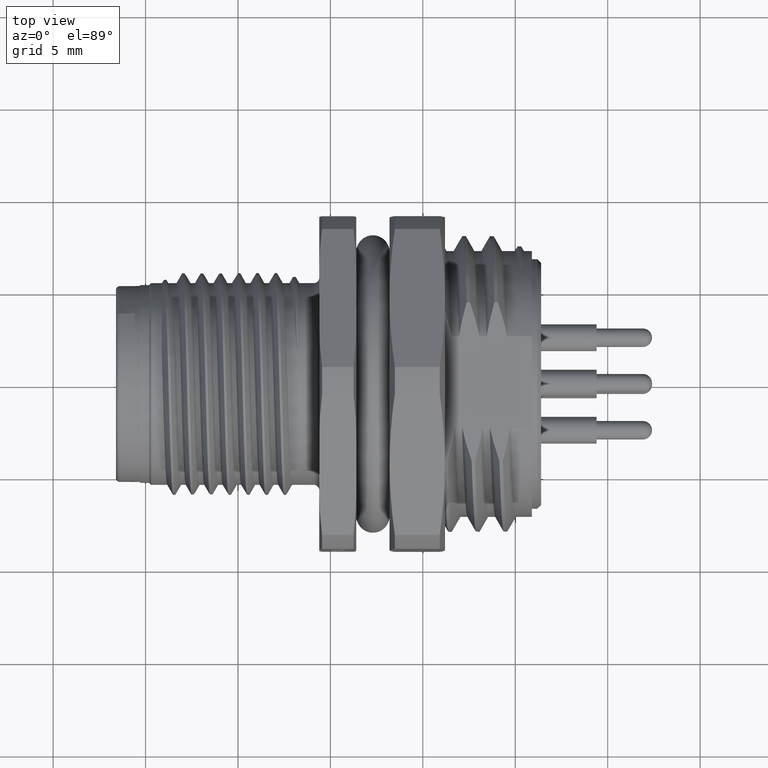
[diagram: clean part render]
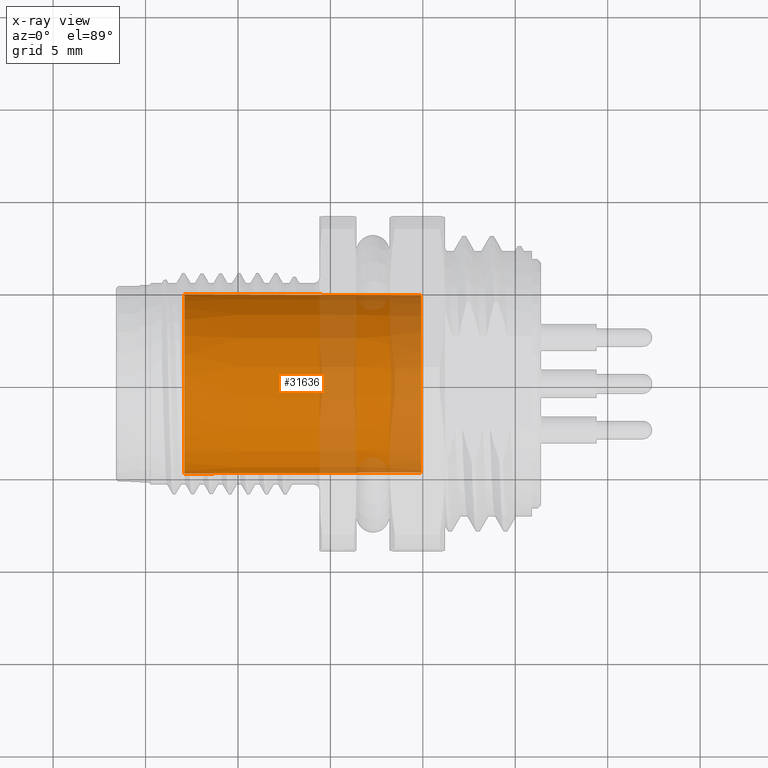
[diagram: x-ray — body ghosted, one internal face saturated and labeled with its STEP entity id]
A machine part, top view, then the same camera in x-ray: the body is ghosted and one INTERNAL B-rep face — a face not visible from any outside direction — is saturated and labeled: STEP entity #31636.
In plain terms, the highlighted conical surface has half-angle 0.2 deg.
Its self-contained STEP definition (entity closure, byte-faithful):
#31523=DIRECTION('',(-9.999939076578E-1,3.490651415191E-3,0.E0));
#31524=VECTOR('',#31523,1.279308202489E1);
#31525=CARTESIAN_POINT('',(1.49E1,4.8E0,0.E0));
#31526=LINE('',#31525,#31524);
#31527=CARTESIAN_POINT('',(1.49E1,0.E0,0.E0));
#31528=DIRECTION('',(-1.E0,0.E0,0.E0));
#31529=DIRECTION('',(0.E0,-1.E0,0.E0));
#31530=AXIS2_PLACEMENT_3D('',#31527,#31528,#31529);
#31532=DIRECTION('',(9.999939076578E-1,3.490651415188E-3,0.E0));
#31533=VECTOR('',#31532,1.279308202489E1);
#31534=CARTESIAN_POINT('',(2.106995914942E0,-4.844656189875E0,0.E0));
#31535=LINE('',#31534,#31533);
#31569=CARTESIAN_POINT('',(2.106995914942E0,0.E0,0.E0));
#31570=DIRECTION('',(-1.E0,0.E0,0.E0));
#31571=DIRECTION('',(0.E0,7.071067811865E-1,7.071067811865E-1));
#31572=AXIS2_PLACEMENT_3D('',#31569,#31570,#31571);
#31594=CARTESIAN_POINT('',(2.106995914942E0,0.E0,0.E0));
#31595=DIRECTION('',(-1.E0,0.E0,0.E0));
#31596=DIRECTION('',(0.E0,-1.E0,0.E0));
#31597=AXIS2_PLACEMENT_3D('',#31594,#31595,#31596);
#31604=CARTESIAN_POINT('',(2.106995914942E0,-4.844656189875E0,0.E0));
#31606=VERTEX_POINT('',#31604);
#31607=CARTESIAN_POINT('',(2.106995914942E0,3.425689244378E0,3.425689244378E0));
#31608=VERTEX_POINT('',#31607);
#31609=CARTESIAN_POINT('',(2.106995914942E0,4.844656189875E0,0.E0));
#31610=VERTEX_POINT('',#31609);
#31615=CARTESIAN_POINT('',(1.49E1,4.8E0,0.E0));
#31616=CARTESIAN_POINT('',(1.49E1,-4.8E0,0.E0));
#31617=VERTEX_POINT('',#31615);
#31618=VERTEX_POINT('',#31616);
#31619=CARTESIAN_POINT('',(8.503497957471E0,0.E0,0.E0));
#31620=DIRECTION('',(-1.E0,0.E0,0.E0));
#31621=DIRECTION('',(0.E0,1.E0,0.E0));
#31622=AXIS2_PLACEMENT_3D('',#31619,#31620,#31621);
#31623=CONICAL_SURFACE('',#31622,4.822328094938E0,1.999999999980E-1);
#31625=ORIENTED_EDGE('',*,*,#31624,.F.);
#31627=ORIENTED_EDGE('',*,*,#31626,.F.);
#31629=ORIENTED_EDGE('',*,*,#31628,.F.);
#31631=ORIENTED_EDGE('',*,*,#31630,.T.);
#31633=ORIENTED_EDGE('',*,*,#31632,.T.);
#31634=EDGE_LOOP('',(#31625,#31627,#31629,#31631,#31633));
#31635=FACE_OUTER_BOUND('',#31634,.F.);
#31636=ADVANCED_FACE('',(#31635),#31623,.T.);
#31531=CIRCLE('',#31530,4.8E0);
#31573=CIRCLE('',#31572,4.844656189875E0);
#31598=CIRCLE('',#31597,4.844656189875E0);
#31624=EDGE_CURVE('',#31617,#31610,#31526,.T.);
#31626=EDGE_CURVE('',#31618,#31617,#31531,.T.);
#31628=EDGE_CURVE('',#31606,#31618,#31535,.T.);
#31630=EDGE_CURVE('',#31606,#31608,#31598,.T.);
#31632=EDGE_CURVE('',#31608,#31610,#31573,.T.);